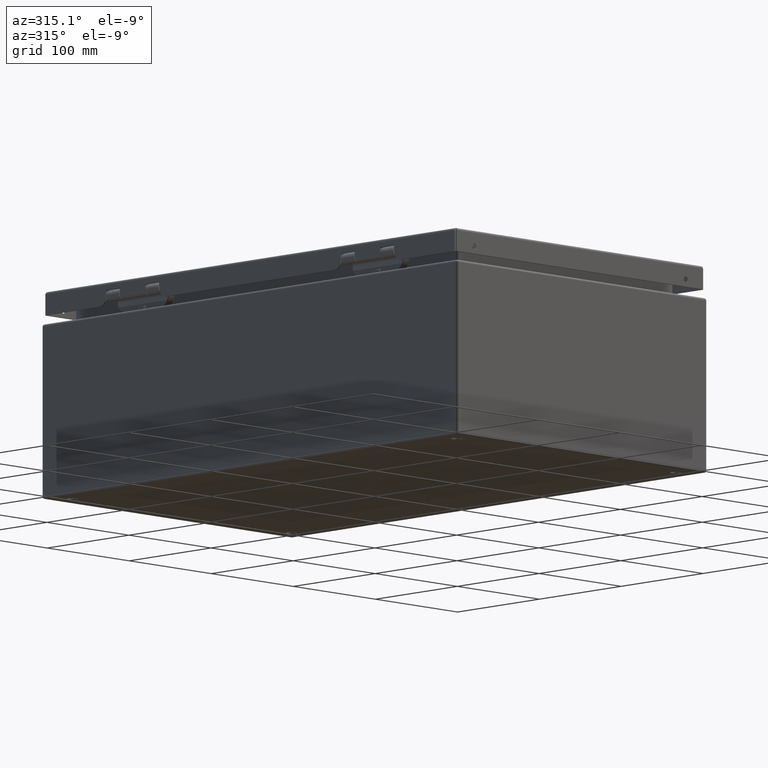
[diagram: clean part render]
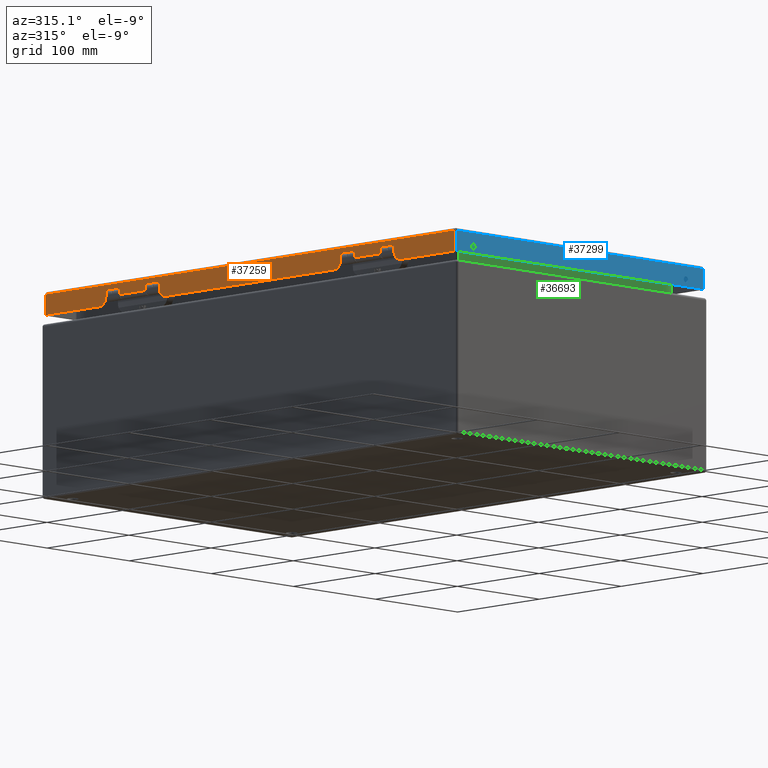
[diagram: same view with three faces highlighted in distinct colors, each labeled with its STEP entity id]
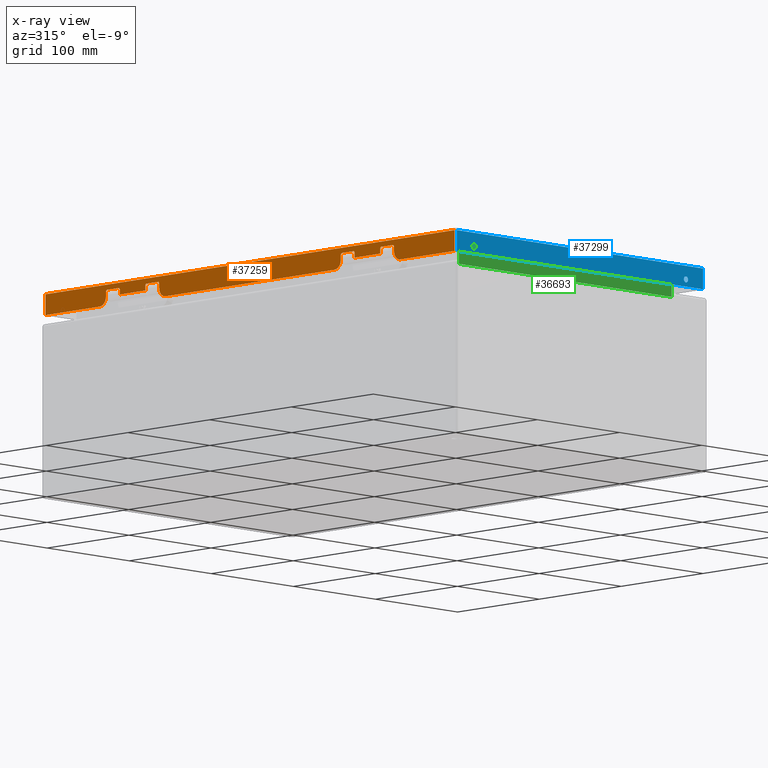
[diagram: x-ray of the same camera — body ghosted, the three highlighted faces saturated]
A machine part, auxiliary view with three faces highlighted in distinct colors.
The next image is the same camera in x-ray (body ghosted, the three faces saturated) — at least one of them is partly hidden behind the body in this view.
Their STEP definitions:

[orange] entity #37259 — the highlighted planar face has unit normal (-1, -0, 0).
#3738=LINE('',#65734,#5940);
#3758=LINE('',#65800,#5960);
#3762=LINE('',#65810,#5964);
#3763=LINE('',#65814,#5965);
#3764=LINE('',#65818,#5966);
#3765=LINE('',#65822,#5967);
#3766=LINE('',#65824,#5968);
#3767=LINE('',#65826,#5969);
#3768=LINE('',#65828,#5970);
#3769=LINE('',#65830,#5971);
#3770=LINE('',#65834,#5972);
#3771=LINE('',#65838,#5973);
#3772=LINE('',#65842,#5974);
#3773=LINE('',#65844,#5975);
#3774=LINE('',#65846,#5976);
#3775=LINE('',#65850,#5977);
#3776=LINE('',#65854,#5978);
#3777=LINE('',#65857,#5979);
#3778=LINE('',#65859,#5980);
#3779=LINE('',#65863,#5981);
#5940=VECTOR('',#44202,0.393700787401575);
#5960=VECTOR('',#44252,0.393700787401575);
#5964=VECTOR('',#44262,0.393700787401575);
#5965=VECTOR('',#44265,0.393700787401575);
#5966=VECTOR('',#44268,0.393700787401575);
#5967=VECTOR('',#44271,0.393700787401575);
#5968=VECTOR('',#44272,0.393700787401575);
#5969=VECTOR('',#44273,0.393700787401575);
#5970=VECTOR('',#44274,0.393700787401575);
#5971=VECTOR('',#44275,0.393700787401575);
#5972=VECTOR('',#44278,0.393700787401575);
#5973=VECTOR('',#44281,0.393700787401575);
#5974=VECTOR('',#44284,0.393700787401575);
#5975=VECTOR('',#44285,0.393700787401575);
#5976=VECTOR('',#44286,0.393700787401575);
#5977=VECTOR('',#44289,0.393700787401575);
#5978=VECTOR('',#44292,0.393700787401575);
#5979=VECTOR('',#44295,0.393700787401575);
#5980=VECTOR('',#44296,0.393700787401575);
#5981=VECTOR('',#44299,0.393700787401575);
#9305=FACE_OUTER_BOUND('',#11620,.T.);
#11620=EDGE_LOOP('',(#28009,#28010,#28011,#28012,#28013,#28014,#28015,#28016,
#28017,#28018,#28019,#28020,#28021,#28022,#28023,#28024,#28025,#28026,#28027,
#28028,#28029,#28030,#28031,#28032,#28033,#28034,#28035,#28036,#28037,#28038,
#28039,#28040));
#13560=CIRCLE('',#40139,0.312);
#13561=CIRCLE('',#40141,0.0590551181102362);
#13562=CIRCLE('',#40142,0.0590551181102362);
#13563=CIRCLE('',#40143,0.312);
#13564=CIRCLE('',#40144,0.312);
#13565=CIRCLE('',#40145,0.0590551181102362);
#13566=CIRCLE('',#40146,0.0590551181102362);
#13567=CIRCLE('',#40147,0.0590551181102362);
#13568=CIRCLE('',#40148,0.0590551181102362);
#13569=CIRCLE('',#40149,0.312);
#13570=CIRCLE('',#40150,0.0590551181102362);
#13571=CIRCLE('',#40151,0.0590551181102362);
#16061=VERTEX_POINT('',#65731);
#16062=VERTEX_POINT('',#65733);
#16093=VERTEX_POINT('',#65799);
#16094=VERTEX_POINT('',#65803);
#16095=VERTEX_POINT('',#65804);
#16096=VERTEX_POINT('',#65809);
#16097=VERTEX_POINT('',#65811);
#16098=VERTEX_POINT('',#65813);
#16099=VERTEX_POINT('',#65815);
#16100=VERTEX_POINT('',#65817);
#16101=VERTEX_POINT('',#65819);
#16102=VERTEX_POINT('',#65821);
#16103=VERTEX_POINT('',#65823);
#16104=VERTEX_POINT('',#65825);
#16105=VERTEX_POINT('',#65827);
#16106=VERTEX_POINT('',#65829);
#16107=VERTEX_POINT('',#65831);
#16108=VERTEX_POINT('',#65833);
#16109=VERTEX_POINT('',#65835);
#16110=VERTEX_POINT('',#65837);
#16111=VERTEX_POINT('',#65839);
#16112=VERTEX_POINT('',#65841);
#16113=VERTEX_POINT('',#65843);
#16114=VERTEX_POINT('',#65845);
#16115=VERTEX_POINT('',#65847);
#16116=VERTEX_POINT('',#65849);
#16117=VERTEX_POINT('',#65851);
#16118=VERTEX_POINT('',#65853);
#16119=VERTEX_POINT('',#65855);
#16120=VERTEX_POINT('',#65858);
#16121=VERTEX_POINT('',#65860);
#16122=VERTEX_POINT('',#65862);
#20337=EDGE_CURVE('',#16062,#16061,#3738,.T.);
#20370=EDGE_CURVE('',#16093,#16062,#3758,.T.);
#20372=EDGE_CURVE('',#16094,#16095,#13560,.T.);
#20375=EDGE_CURVE('',#16061,#16096,#3762,.T.);
#20376=EDGE_CURVE('',#16097,#16096,#13561,.T.);
#20377=EDGE_CURVE('',#16097,#16098,#3763,.T.);
#20378=EDGE_CURVE('',#16099,#16098,#13562,.T.);
#20379=EDGE_CURVE('',#16099,#16100,#3764,.T.);
#20380=EDGE_CURVE('',#16101,#16100,#13563,.T.);
#20381=EDGE_CURVE('',#16102,#16101,#3765,.T.);
#20382=EDGE_CURVE('',#16103,#16102,#3766,.T.);
#20383=EDGE_CURVE('',#16103,#16104,#3767,.T.);
#20384=EDGE_CURVE('',#16104,#16105,#3768,.T.);
#20385=EDGE_CURVE('',#16106,#16105,#3769,.T.);
#20386=EDGE_CURVE('',#16107,#16106,#13564,.T.);
#20387=EDGE_CURVE('',#16107,#16108,#3770,.T.);
#20388=EDGE_CURVE('',#16109,#16108,#13565,.T.);
#20389=EDGE_CURVE('',#16109,#16110,#3771,.T.);
#20390=EDGE_CURVE('',#16111,#16110,#13566,.T.);
#20391=EDGE_CURVE('',#16111,#16112,#3772,.T.);
#20392=EDGE_CURVE('',#16112,#16113,#3773,.T.);
#20393=EDGE_CURVE('',#16113,#16114,#3774,.T.);
#20394=EDGE_CURVE('',#16115,#16114,#13567,.T.);
#20395=EDGE_CURVE('',#16115,#16116,#3775,.T.);
#20396=EDGE_CURVE('',#16117,#16116,#13568,.T.);
#20397=EDGE_CURVE('',#16117,#16118,#3776,.T.);
#20398=EDGE_CURVE('',#16119,#16118,#13569,.T.);
#20399=EDGE_CURVE('',#16095,#16119,#3777,.T.);
#20400=EDGE_CURVE('',#16094,#16120,#3778,.T.);
#20401=EDGE_CURVE('',#16121,#16120,#13570,.T.);
#20402=EDGE_CURVE('',#16121,#16122,#3779,.T.);
#20403=EDGE_CURVE('',#16093,#16122,#13571,.T.);
#28009=ORIENTED_EDGE('',*,*,#20337,.T.);
#28010=ORIENTED_EDGE('',*,*,#20375,.T.);
#28011=ORIENTED_EDGE('',*,*,#20376,.F.);
#28012=ORIENTED_EDGE('',*,*,#20377,.T.);
#28013=ORIENTED_EDGE('',*,*,#20378,.F.);
#28014=ORIENTED_EDGE('',*,*,#20379,.T.);
#28015=ORIENTED_EDGE('',*,*,#20380,.F.);
#28016=ORIENTED_EDGE('',*,*,#20381,.F.);
#28017=ORIENTED_EDGE('',*,*,#20382,.F.);
#28018=ORIENTED_EDGE('',*,*,#20383,.T.);
#28019=ORIENTED_EDGE('',*,*,#20384,.T.);
#28020=ORIENTED_EDGE('',*,*,#20385,.F.);
#28021=ORIENTED_EDGE('',*,*,#20386,.F.);
#28022=ORIENTED_EDGE('',*,*,#20387,.T.);
#28023=ORIENTED_EDGE('',*,*,#20388,.F.);
#28024=ORIENTED_EDGE('',*,*,#20389,.T.);
#28025=ORIENTED_EDGE('',*,*,#20390,.F.);
#28026=ORIENTED_EDGE('',*,*,#20391,.T.);
#28027=ORIENTED_EDGE('',*,*,#20392,.T.);
#28028=ORIENTED_EDGE('',*,*,#20393,.T.);
#28029=ORIENTED_EDGE('',*,*,#20394,.F.);
#28030=ORIENTED_EDGE('',*,*,#20395,.T.);
#28031=ORIENTED_EDGE('',*,*,#20396,.F.);
#28032=ORIENTED_EDGE('',*,*,#20397,.T.);
#28033=ORIENTED_EDGE('',*,*,#20398,.F.);
#28034=ORIENTED_EDGE('',*,*,#20399,.F.);
#28035=ORIENTED_EDGE('',*,*,#20372,.F.);
#28036=ORIENTED_EDGE('',*,*,#20400,.T.);
#28037=ORIENTED_EDGE('',*,*,#20401,.F.);
#28038=ORIENTED_EDGE('',*,*,#20402,.T.);
#28039=ORIENTED_EDGE('',*,*,#20403,.F.);
#28040=ORIENTED_EDGE('',*,*,#20370,.T.);
#35989=PLANE('',#40140);
#37259=ADVANCED_FACE('',(#9305),#35989,.T.);
#40139=AXIS2_PLACEMENT_3D('',#65805,#44256,#44257);
#40140=AXIS2_PLACEMENT_3D('',#65808,#44260,#44261);
#40141=AXIS2_PLACEMENT_3D('',#65812,#44263,#44264);
#40142=AXIS2_PLACEMENT_3D('',#65816,#44266,#44267);
#40143=AXIS2_PLACEMENT_3D('',#65820,#44269,#44270);
#40144=AXIS2_PLACEMENT_3D('',#65832,#44276,#44277);
#40145=AXIS2_PLACEMENT_3D('',#65836,#44279,#44280);
#40146=AXIS2_PLACEMENT_3D('',#65840,#44282,#44283);
#40147=AXIS2_PLACEMENT_3D('',#65848,#44287,#44288);
#40148=AXIS2_PLACEMENT_3D('',#65852,#44290,#44291);
#40149=AXIS2_PLACEMENT_3D('',#65856,#44293,#44294);
#40150=AXIS2_PLACEMENT_3D('',#65861,#44297,#44298);
#40151=AXIS2_PLACEMENT_3D('',#65864,#44300,#44301);
#44202=DIRECTION('',(7.04682354086731E-17,-1.,1.42029465145827E-16));
#44252=DIRECTION('',(-5.4875896609275E-15,-1.92619813391372E-15,-1.));
#44256=DIRECTION('center_axis',(1.,7.04682354086723E-17,-5.4875896609275E-15));
#44257=DIRECTION('ref_axis',(-3.16998275526706E-15,-0.707106781186548,-0.707106781186547));
#44260=DIRECTION('center_axis',(-1.,-7.04682354086723E-17,5.4875896609275E-15));
#44261=DIRECTION('ref_axis',(5.4875896609275E-15,-7.06310242264351E-17,
1.));
#44262=DIRECTION('',(5.4875896609275E-15,-1.73533634974099E-15,1.));
#44263=DIRECTION('center_axis',(-1.,-7.04682354086723E-17,5.4875896609275E-15));
#44264=DIRECTION('ref_axis',(0.,0.707106781186543,0.707106781186552));
#44265=DIRECTION('',(7.04682354086736E-17,-1.,2.26789473299375E-16));
#44266=DIRECTION('center_axis',(-1.,-7.04682354086723E-17,5.4875896609275E-15));
#44267=DIRECTION('ref_axis',(0.,-0.707106781186544,0.707106781186551));
#44268=DIRECTION('',(-5.4875896609275E-15,-9.54308920863682E-17,-1.));
#44269=DIRECTION('center_axis',(1.,7.04682354086723E-17,-5.4875896609275E-15));
#44270=DIRECTION('ref_axis',(-3.16998275526705E-15,0.70710678118655,-0.707106781186545));
#44271=DIRECTION('',(0.,1.,0.));
#44272=DIRECTION('',(-4.8837506031987E-15,2.34420028953537E-14,-1.));
#44273=DIRECTION('',(-7.04682354086723E-17,1.,-8.77481029665033E-34));
#44274=DIRECTION('',(-4.88375060319868E-15,5.86050072383841E-15,-1.));
#44275=DIRECTION('',(0.,1.,0.));
#44276=DIRECTION('center_axis',(1.,7.04682354086723E-17,-5.4875896609275E-15));
#44277=DIRECTION('ref_axis',(-3.16998275526707E-15,-0.707106781186547,-0.707106781186549));
#44278=DIRECTION('',(5.4875896609275E-15,9.54308920863682E-17,1.));
#44279=DIRECTION('center_axis',(-1.,-7.04682354086723E-17,5.4875896609275E-15));
#44280=DIRECTION('ref_axis',(0.,0.707106781186544,0.707106781186551));
#44281=DIRECTION('',(7.04682354086722E-17,-1.,-3.59276891266396E-17));
#44282=DIRECTION('center_axis',(-1.,-7.04682354086723E-17,5.4875896609275E-15));
#44283=DIRECTION('ref_axis',(0.,-0.707106781186543,0.707106781186552));
#44284=DIRECTION('',(-5.4875896609275E-15,-1.92619813391372E-15,-1.));
#44285=DIRECTION('',(7.04682354086731E-17,-1.,1.42029465145827E-16));
#44286=DIRECTION('',(5.4875896609275E-15,-1.73533634974099E-15,1.));
#44287=DIRECTION('center_axis',(-1.,-7.04682354086723E-17,5.4875896609275E-15));
#44288=DIRECTION('ref_axis',(0.,0.707106781186552,0.707106781186543));
#44289=DIRECTION('',(7.04682354086736E-17,-1.,2.26789473299375E-16));
#44290=DIRECTION('center_axis',(-1.,-7.04682354086723E-17,5.4875896609275E-15));
#44291=DIRECTION('ref_axis',(0.,-0.707106781186552,0.707106781186543));
#44292=DIRECTION('',(-5.4875896609275E-15,-9.54308920863682E-17,-1.));
#44293=DIRECTION('center_axis',(1.,7.04682354086723E-17,-5.4875896609275E-15));
#44294=DIRECTION('ref_axis',(-3.16998275526707E-15,0.707106781186547,-0.707106781186549));
#44295=DIRECTION('',(0.,1.,0.));
#44296=DIRECTION('',(5.4875896609275E-15,9.54308920863682E-17,1.));
#44297=DIRECTION('center_axis',(-1.,-7.04682354086723E-17,5.4875896609275E-15));
#44298=DIRECTION('ref_axis',(0.,0.707106781186552,0.707106781186543));
#44299=DIRECTION('',(7.04682354086722E-17,-1.,-3.59276891266396E-17));
#44300=DIRECTION('center_axis',(-1.,-7.04682354086723E-17,5.4875896609275E-15));
#44301=DIRECTION('ref_axis',(0.,-0.707106781186543,0.707106781186552));
#65731=CARTESIAN_POINT('',(-5.959,-6.267,-0.438999999999969));
#65733=CARTESIAN_POINT('',(-5.959,-5.036,-0.438999999999969));
#65734=CARTESIAN_POINT('',(-5.959,-3.1335,-0.438999999999969));
#65799=CARTESIAN_POINT('',(-5.959,-5.036,-0.269055118110204));
#65800=CARTESIAN_POINT('',(-5.959,-5.036,-0.475121118562494));
#65803=CARTESIAN_POINT('',(-5.959,-4.3705,-0.434999999999998));
#65804=CARTESIAN_POINT('',(-5.959,-4.0585,-0.746999999999998));
#65805=CARTESIAN_POINT('Origin',(-5.959,-4.0585,-0.434999999999998));
#65808=CARTESIAN_POINT('Origin',(-5.959,1.22353847014509E-15,-0.358242237125028));
#65809=CARTESIAN_POINT('',(-5.959,-6.267,-0.269055118110204));
#65810=CARTESIAN_POINT('',(-5.959,-6.267,-0.284121118562503));
#65811=CARTESIAN_POINT('',(-5.959,-6.32605511811024,-0.209999999999968));
#65812=CARTESIAN_POINT('Origin',(-5.959,-6.32605511811024,-0.269055118110204));
#65813=CARTESIAN_POINT('',(-5.959,-6.87344488188976,-0.209999999999968));
#65814=CARTESIAN_POINT('',(-5.959,-3.46625,-0.209999999999969));
#65815=CARTESIAN_POINT('',(-5.959,-6.9325,-0.269055118110204));
#65816=CARTESIAN_POINT('Origin',(-5.959,-6.87344488188976,-0.269055118110204));
#65817=CARTESIAN_POINT('',(-5.959,-6.9325,-0.434999999999998));
#65818=CARTESIAN_POINT('',(-5.959,-6.9325,-0.552621118562498));
#65819=CARTESIAN_POINT('',(-5.959,-7.2445,-0.746999999999998));
#65820=CARTESIAN_POINT('Origin',(-5.959,-7.2445,-0.434999999999998));
#65821=CARTESIAN_POINT('',(-5.959,-9.84749999999998,-0.746999999999998));
#65822=CARTESIAN_POINT('',(-5.959,-55.8808587174797,-0.746999999999998));
#65823=CARTESIAN_POINT('',(-5.959,-9.84749999999999,-0.0309999999999998));
#65824=CARTESIAN_POINT('',(-5.959,-9.84749999999999,-0.0309999999999999));
#65825=CARTESIAN_POINT('',(-5.959,9.8475,-0.0310000000000017));
#65826=CARTESIAN_POINT('',(-5.959,6.08806381617541E-16,-0.0309999999999999));
#65827=CARTESIAN_POINT('',(-5.959,9.8475,-0.747000000000001));
#65828=CARTESIAN_POINT('',(-5.959,9.8475,-0.0309999999999999));
#65829=CARTESIAN_POINT('',(-5.959,7.2445,-0.746999999999998));
#65830=CARTESIAN_POINT('',(-5.959,-55.8808587174797,-0.746999999999998));
#65831=CARTESIAN_POINT('',(-5.959,6.9325,-0.434999999999998));
#65832=CARTESIAN_POINT('Origin',(-5.959,7.2445,-0.434999999999998));
#65833=CARTESIAN_POINT('',(-5.959,6.9325,-0.269055118110204));
#65834=CARTESIAN_POINT('',(-5.959,6.9325,-0.284121118562498));
#65835=CARTESIAN_POINT('',(-5.959,6.87344488188976,-0.209999999999968));
#65836=CARTESIAN_POINT('Origin',(-5.959,6.87344488188976,-0.269055118110204));
#65837=CARTESIAN_POINT('',(-5.959,6.32605511811023,-0.209999999999968));
#65838=CARTESIAN_POINT('',(-5.959,3.1335,-0.209999999999968));
#65839=CARTESIAN_POINT('',(-5.959,6.267,-0.269055118110204));
#65840=CARTESIAN_POINT('Origin',(-5.959,6.32605511811023,-0.269055118110204));
#65841=CARTESIAN_POINT('',(-5.959,6.267,-0.438999999999969));
#65842=CARTESIAN_POINT('',(-5.959,6.267,-0.475121118562504));
#65843=CARTESIAN_POINT('',(-5.959,5.036,-0.438999999999969));
#65844=CARTESIAN_POINT('',(-5.959,2.518,-0.438999999999968));
#65845=CARTESIAN_POINT('',(-5.959,5.036,-0.269055118110204));
#65846=CARTESIAN_POINT('',(-5.959,5.036,-0.284121118562494));
#65847=CARTESIAN_POINT('',(-5.959,4.97694488188976,-0.209999999999968));
#65848=CARTESIAN_POINT('Origin',(-5.959,4.97694488188976,-0.269055118110204));
#65849=CARTESIAN_POINT('',(-5.959,4.42955511811024,-0.209999999999968));
#65850=CARTESIAN_POINT('',(-5.959,2.18525,-0.209999999999967));
#65851=CARTESIAN_POINT('',(-5.959,4.3705,-0.269055118110204));
#65852=CARTESIAN_POINT('Origin',(-5.959,4.42955511811024,-0.269055118110204));
#65853=CARTESIAN_POINT('',(-5.959,4.3705,-0.434999999999998));
#65854=CARTESIAN_POINT('',(-5.959,4.3705,-0.552621118562498));
#65855=CARTESIAN_POINT('',(-5.959,4.0585,-0.746999999999998));
#65856=CARTESIAN_POINT('Origin',(-5.959,4.0585,-0.434999999999998));
#65857=CARTESIAN_POINT('',(-5.959,-55.8808587174797,-0.746999999999998));
#65858=CARTESIAN_POINT('',(-5.959,-4.3705,-0.269055118110204));
#65859=CARTESIAN_POINT('',(-5.959,-4.3705,-0.284121118562498));
#65860=CARTESIAN_POINT('',(-5.959,-4.42955511811024,-0.209999999999968));
#65861=CARTESIAN_POINT('Origin',(-5.959,-4.42955511811024,-0.269055118110204));
#65862=CARTESIAN_POINT('',(-5.959,-4.97694488188976,-0.209999999999968));
#65863=CARTESIAN_POINT('',(-5.959,-2.518,-0.209999999999968));
#65864=CARTESIAN_POINT('Origin',(-5.959,-4.97694488188976,-0.269055118110204));

[blue] entity #37299 — the highlighted planar face has unit normal (0, -1, -0).
#683=FACE_BOUND('',#11663,.T.);
#684=FACE_BOUND('',#11664,.T.);
#3814=LINE('',#66093,#6016);
#3818=LINE('',#66113,#6020);
#3826=LINE('',#66185,#6028);
#3827=LINE('',#66186,#6029);
#6016=VECTOR('',#44406,0.393700787401575);
#6020=VECTOR('',#44412,0.393700787401575);
#6028=VECTOR('',#44428,0.393700787401575);
#6029=VECTOR('',#44429,0.393700787401575);
#9345=FACE_OUTER_BOUND('',#11662,.T.);
#11662=EDGE_LOOP('',(#28212,#28213,#28214,#28215));
#11663=EDGE_LOOP('',(#28216));
#11664=EDGE_LOOP('',(#28217));
#13535=CIRCLE('',#40102,0.1015);
#13539=CIRCLE('',#40108,0.1015);
#16042=VERTEX_POINT('',#65676);
#16046=VERTEX_POINT('',#65688);
#16129=VERTEX_POINT('',#65966);
#16139=VERTEX_POINT('',#66092);
#16143=VERTEX_POINT('',#66111);
#16151=VERTEX_POINT('',#66184);
#20310=EDGE_CURVE('',#16042,#16042,#13535,.T.);
#20316=EDGE_CURVE('',#16046,#16046,#13539,.T.);
#20451=EDGE_CURVE('',#16139,#16129,#3814,.T.);
#20457=EDGE_CURVE('',#16143,#16129,#3818,.T.);
#20471=EDGE_CURVE('',#16151,#16143,#3826,.T.);
#20472=EDGE_CURVE('',#16139,#16151,#3827,.T.);
#28212=ORIENTED_EDGE('',*,*,#20457,.F.);
#28213=ORIENTED_EDGE('',*,*,#20471,.F.);
#28214=ORIENTED_EDGE('',*,*,#20472,.F.);
#28215=ORIENTED_EDGE('',*,*,#20451,.T.);
#28216=ORIENTED_EDGE('',*,*,#20310,.T.);
#28217=ORIENTED_EDGE('',*,*,#20316,.T.);
#36008=PLANE('',#40191);
#37299=ADVANCED_FACE('',(#9345,#683,#684),#36008,.T.);
#40102=AXIS2_PLACEMENT_3D('',#65678,#44145,#44146);
#40108=AXIS2_PLACEMENT_3D('',#65690,#44159,#44160);
#40191=AXIS2_PLACEMENT_3D('',#66183,#44426,#44427);
#44145=DIRECTION('center_axis',(2.6819587487664E-19,1.,2.29341197694765E-14));
#44146=DIRECTION('ref_axis',(-1.,0.,-4.24088624549984E-34));
#44159=DIRECTION('center_axis',(2.6819587487664E-19,1.,2.29341197694765E-14));
#44160=DIRECTION('ref_axis',(-1.,0.,-4.24088624549984E-34));
#44406=DIRECTION('',(-1.,2.6819587487664E-19,6.17692823528309E-33));
#44412=DIRECTION('',(6.83725084447813E-15,-2.29341197694765E-14,1.));
#44426=DIRECTION('center_axis',(-2.6819587487664E-19,-1.,-2.29341197694765E-14));
#44427=DIRECTION('ref_axis',(1.,-2.6819587487664E-19,-6.17692823528309E-33));
#44428=DIRECTION('',(-1.,0.,0.));
#44429=DIRECTION('',(5.86050072383842E-15,2.29341197694765E-14,-1.));
#65676=CARTESIAN_POINT('',(5.1855,-9.90149999999998,-0.497000000000054));
#65678=CARTESIAN_POINT('Origin',(5.084,-9.90149999999998,-0.497000000000054));
#65688=CARTESIAN_POINT('',(-4.9825,-9.90149999999998,-0.497000000000054));
#65690=CARTESIAN_POINT('Origin',(-5.084,-9.90149999999998,-0.497000000000054));
#65966=CARTESIAN_POINT('',(-5.905,-9.9015,-0.0310000000000036));
#66092=CARTESIAN_POINT('',(5.905,-9.9015,-0.0310000000000036));
#66093=CARTESIAN_POINT('',(2.29469218784479E-16,-9.90149999999999,-0.0310000000000027));
#66111=CARTESIAN_POINT('',(-5.905,-9.90149999999998,-0.747000000000003));
#66113=CARTESIAN_POINT('',(-5.905,-9.90149999999998,-0.373621118562497));
#66183=CARTESIAN_POINT('Origin',(4.58950462935596E-16,-9.90149999999998,
-0.358242237125031));
#66184=CARTESIAN_POINT('',(5.90500000000001,-9.90149999999998,-0.747000000000003));
#66185=CARTESIAN_POINT('',(5.959,-9.90149999999998,-0.747000000000003));
#66186=CARTESIAN_POINT('',(5.905,-9.90149999999998,-0.3736211185625));

[green] entity #36693 — the highlighted planar face has unit normal (0, -1, 0).
#3619=LINE('',#52548,#5821);
#3632=LINE('',#52619,#5834);
#3662=LINE('',#52715,#5864);
#3663=LINE('',#52717,#5865);
#5821=VECTOR('',#43363,0.393700787401575);
#5834=VECTOR('',#43436,0.393700787401575);
#5864=VECTOR('',#43542,0.393700787401575);
#5865=VECTOR('',#43545,0.393700787401575);
#8739=FACE_OUTER_BOUND('',#11041,.T.);
#11041=EDGE_LOOP('',(#24740,#24741,#24742,#24743));
#14973=VERTEX_POINT('',#52538);
#14976=VERTEX_POINT('',#52546);
#14989=VERTEX_POINT('',#52580);
#15003=VERTEX_POINT('',#52613);
#18677=EDGE_CURVE('',#14976,#14973,#3619,.T.);
#18712=EDGE_CURVE('',#14989,#15003,#3632,.T.);
#18763=EDGE_CURVE('',#14976,#15003,#3662,.T.);
#18764=EDGE_CURVE('',#14973,#14989,#3663,.T.);
#24740=ORIENTED_EDGE('',*,*,#18677,.F.);
#24741=ORIENTED_EDGE('',*,*,#18763,.T.);
#24742=ORIENTED_EDGE('',*,*,#18712,.F.);
#24743=ORIENTED_EDGE('',*,*,#18764,.F.);
#35955=PLANE('',#39831);
#36693=ADVANCED_FACE('',(#8739),#35955,.T.);
#39831=AXIS2_PLACEMENT_3D('',#52716,#43543,#43544);
#43363=DIRECTION('',(-5.52737501055604E-15,2.0919491445597E-14,1.));
#43436=DIRECTION('',(-5.52737501055604E-15,-2.0919491445597E-14,-1.));
#43542=DIRECTION('',(1.,1.1770951656308E-17,5.88547582815393E-18));
#43543=DIRECTION('center_axis',(1.17709516563079E-17,-1.,2.0919491445597E-14));
#43544=DIRECTION('ref_axis',(1.,1.1770951656308E-17,5.88547582815383E-18));
#43545=DIRECTION('',(1.,0.,0.));
#52538=CARTESIAN_POINT('',(-5.10285826771653,-9.18685826771653,6.84725196850394));
#52546=CARTESIAN_POINT('',(-5.10285826771653,-9.18685826771653,6.03100000000001));
#52548=CARTESIAN_POINT('',(-5.10285826771657,-9.18685826771655,6.44429081038872));
#52580=CARTESIAN_POINT('',(5.10285826771653,-9.18685826771663,6.84725196850378));
#52613=CARTESIAN_POINT('',(5.10285826771653,-9.18685826771656,6.03100000000001));
#52619=CARTESIAN_POINT('',(5.10285826771657,-9.18685826771655,6.44429081038872));
#52715=CARTESIAN_POINT('',(1.74702611376674E-16,-9.18685826771656,6.03100000000001));
#52716=CARTESIAN_POINT('Origin',(3.47061680363812E-16,-9.18685826771655,
6.44429081038863));
#52717=CARTESIAN_POINT('',(5.13107438275127,-9.18685826771663,6.84725196850378));